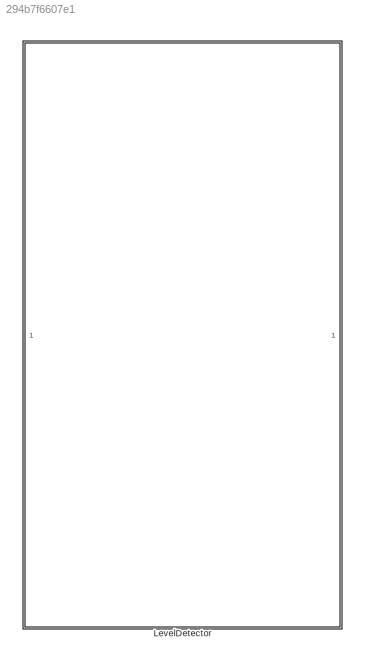
MODEL slx_294b7f6607e1
KIND library
CONFIG AbsTol = auto
CONFIG EnableMultiTasking = off
CONFIG FixedStep = auto
CONFIG MaxStep = auto
CONFIG MinStep = auto
CONFIG RelTol = 1e-3
CONFIG SampleTimeConstraint = Unconstrained
CONFIG SolverName = VariableStepAuto
CONFIG StartTime = 0.0
CONFIG StopTime = 10.0
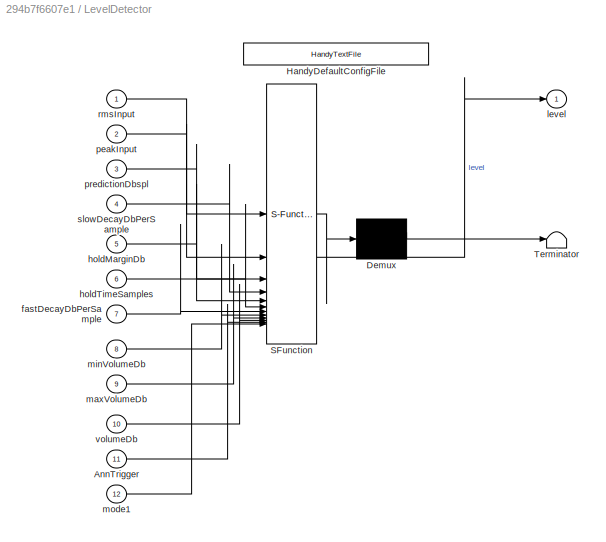
BLOCK [SubSystem] LevelDetector
  ErrorFcn = Stateflow.Translate.translate
  PermitHierarchicalResolution = ExplicitOnly
  SFBlockType = MATLAB Function
  TreatAsAtomicUnit = on
BLOCK [Demux] LevelDetector/ Demux 
  Outputs = 1
BLOCK [S-Function] LevelDetector/ SFunction 
  EnableBusSupport = off
  FunctionName = sf_sfun
  Parameters = AnnTriggerThreshold,SuperFastDecayMultiplier
  PortCounts = [12 2]
  SFcnIsStateOwnerBlock = off
  SFunctionDeploymentMode = off
  Tag = Stateflow S-Function 18
BLOCK [Terminator] LevelDetector/ Terminator 
BLOCK [Inport] LevelDetector/AnnTrigger
  Port = 11
BLOCK [Reference] LevelDetector/HandyDefaultConfigFile  REF=HandyTextFile/HandyTextFile
  SourceBlock = HandyTextFile/HandyTextFile
  SourceType = Talaria Handy Text File
BLOCK [Inport] LevelDetector/fastDecayDbPerSample
  Port = 7
BLOCK [Inport] LevelDetector/holdMarginDb
  Port = 5
BLOCK [Inport] LevelDetector/holdTimeSamples
  Port = 6
BLOCK [Outport] LevelDetector/level
  VectorParamsAs1DForOutWhenUnconnected = off
BLOCK [Inport] LevelDetector/maxVolumeDb
  Port = 9
BLOCK [Inport] LevelDetector/minVolumeDb
  Port = 8
BLOCK [Inport] LevelDetector/mode1
  Port = 12
BLOCK [Inport] LevelDetector/peakInput
  Port = 2
BLOCK [Inport] LevelDetector/predictionDbspl
  Port = 3
BLOCK [Inport] LevelDetector/rmsInput
BLOCK [Inport] LevelDetector/slowDecayDbPerSample
  Port = 4
BLOCK [Inport] LevelDetector/volumeDb
  Port = 10
CHART LevelDetector states=1 transitions=1
  STATE_LABEL 'eML_blk_kernel()'
  STATE_LABEL 'SCRIPT:\nfunction level = levelDetector(rmsInput, peakInput, predictionDbspl, ...\n    slowDecayDbPerSample, holdMarginDb, holdTimeSamples, fastDecayDbPerSample, ...\n    minVolumeDb, maxVolumeDb, volumeDb, AnnTrigger, mode1, ... % inputs\n    AnnTriggerThreshold, SuperFastDecayMultiplier) % parameters\n   \n    % States\n    persistent holdFlag;\n    persistent holdState;\n    persistent envelope1;\n\n    i...<+2814ch>'
CHART  states=0 transitions=0
